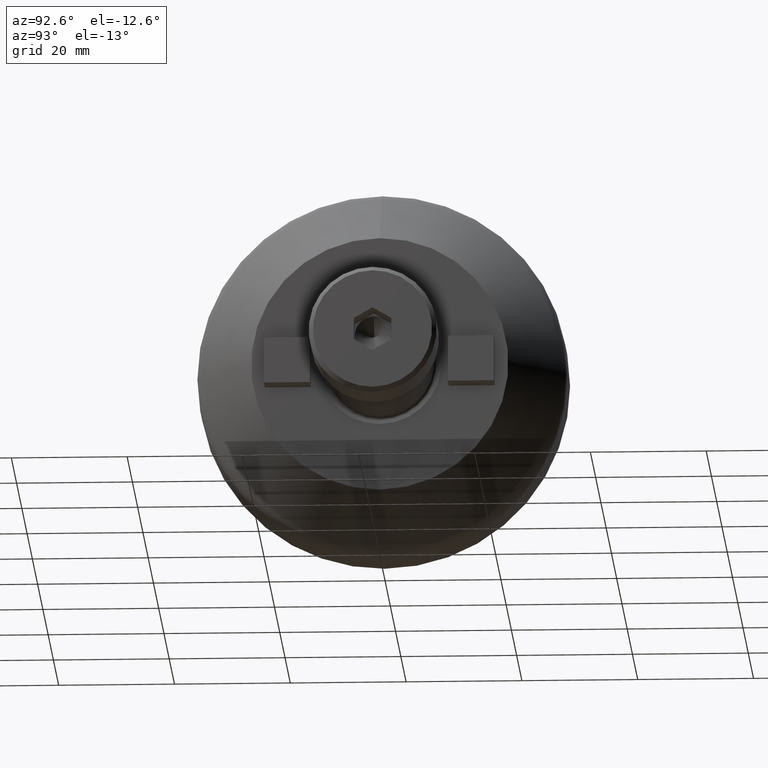
[diagram: clean part render]
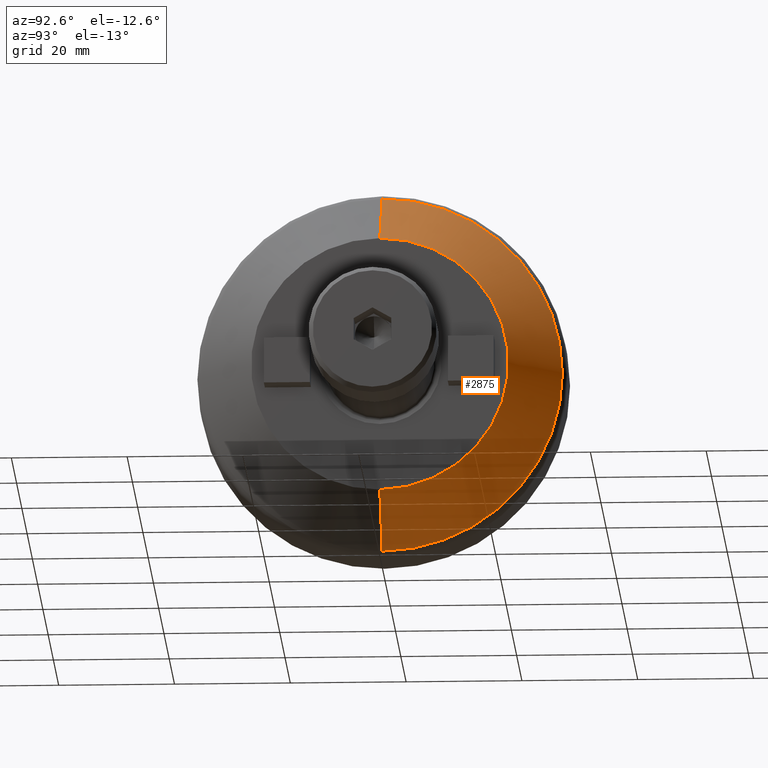
[diagram: same view with one face highlighted and labeled with its STEP entity id]
A machine part, auxiliary view. The second image highlights one B-rep face of the part: STEP entity #2875.
In plain terms, the highlighted conical surface has half-angle 45 deg.
Its self-contained STEP definition (entity closure, byte-faithful):
#199 = VECTOR ( 'NONE', #1192, 1000.000000000000000 ) ;
#269 = CARTESIAN_POINT ( 'NONE',  ( 51.01367965644033100, 0.0000000000000000000, 0.0000000000000000000 ) ) ;
#528 = CARTESIAN_POINT ( 'NONE',  ( 59.91000000000000400, 3.266520022751482600E-015, -22.22500000000000100 ) ) ;
#617 = CARTESIAN_POINT ( 'NONE',  ( 59.91000000000000400, 0.0000000000000000000, 22.22500000000000100 ) ) ;
#676 = AXIS2_PLACEMENT_3D ( 'NONE', #269, #1514, #7450 ) ;
#1069 = VERTEX_POINT ( 'NONE', #5431 ) ;
#1192 = DIRECTION ( 'NONE',  ( -0.7071067811865489100, 0.0000000000000000000, 0.7071067811865462400 ) ) ;
#1514 = DIRECTION ( 'NONE',  ( -1.000000000000000000, -0.0000000000000000000, -0.0000000000000000000 ) ) ;
#1640 = EDGE_LOOP ( 'NONE', ( #4786, #4519, #2423, #2391 ) ) ;
#1661 = LINE ( 'NONE', #7203, #4954 ) ;
#1799 = EDGE_CURVE ( 'NONE', #3390, #1948, #6989, .T. ) ;
#1948 = VERTEX_POINT ( 'NONE', #5684 ) ;
#2016 = CARTESIAN_POINT ( 'NONE',  ( 59.91000000000000400, 0.0000000000000000000, 0.0000000000000000000 ) ) ;
#2045 = DIRECTION ( 'NONE',  ( 0.0000000000000000000, 0.0000000000000000000, 1.000000000000000000 ) ) ;
#2391 = ORIENTED_EDGE ( 'NONE', *, *, #1799, .F. ) ;
#2423 = ORIENTED_EDGE ( 'NONE', *, *, #4043, .F. ) ;
#2624 = CARTESIAN_POINT ( 'NONE',  ( 59.91000000000000400, 0.0000000000000000000, 22.22500000000000100 ) ) ;
#2714 = CIRCLE ( 'NONE', #676, 31.12132034355963800 ) ;
#2875 = ADVANCED_FACE ( 'NONE', ( #6509 ), #2973, .T. ) ;
#2973 = CONICAL_SURFACE ( 'NONE', #3349, 22.22500000000000100, 0.7853981633974463900 ) ;
#3349 = AXIS2_PLACEMENT_3D ( 'NONE', #5053, #4991, #3966 ) ;
#3390 = VERTEX_POINT ( 'NONE', #2624 ) ;
#3557 = AXIS2_PLACEMENT_3D ( 'NONE', #2016, #4406, #2045 ) ;
#3624 = DIRECTION ( 'NONE',  ( -0.7071067811865489100, 8.659560562354915600E-017, -0.7071067811865462400 ) ) ;
#3966 = DIRECTION ( 'NONE',  ( 0.0000000000000000000, 0.0000000000000000000, 1.000000000000000000 ) ) ;
#4043 = EDGE_CURVE ( 'NONE', #1948, #1069, #2714, .T. ) ;
#4406 = DIRECTION ( 'NONE',  ( -1.000000000000000000, -0.0000000000000000000, -0.0000000000000000000 ) ) ;
#4519 = ORIENTED_EDGE ( 'NONE', *, *, #4534, .T. ) ;
#4534 = EDGE_CURVE ( 'NONE', #6978, #1069, #1661, .T. ) ;
#4786 = ORIENTED_EDGE ( 'NONE', *, *, #5342, .T. ) ;
#4954 = VECTOR ( 'NONE', #3624, 1000.000000000000000 ) ;
#4991 = DIRECTION ( 'NONE',  ( -1.000000000000000000, -0.0000000000000000000, -0.0000000000000000000 ) ) ;
#5053 = CARTESIAN_POINT ( 'NONE',  ( 59.91000000000000400, 0.0000000000000000000, 0.0000000000000000000 ) ) ;
#5342 = EDGE_CURVE ( 'NONE', #3390, #6978, #6836, .T. ) ;
#5431 = CARTESIAN_POINT ( 'NONE',  ( 51.01367965644033100, 3.811262534397972000E-015, -31.12132034355963800 ) ) ;
#5684 = CARTESIAN_POINT ( 'NONE',  ( 51.01367965644033100, 0.0000000000000000000, 31.12132034355963800 ) ) ;
#6509 = FACE_OUTER_BOUND ( 'NONE', #1640, .T. ) ;
#6836 = CIRCLE ( 'NONE', #3557, 22.22500000000000100 ) ;
#6978 = VERTEX_POINT ( 'NONE', #528 ) ;
#6989 = LINE ( 'NONE', #617, #199 ) ;
#7203 = CARTESIAN_POINT ( 'NONE',  ( 59.91000000000000400, 2.721777511104992800E-015, -22.22500000000000100 ) ) ;
#7450 = DIRECTION ( 'NONE',  ( 0.0000000000000000000, 0.0000000000000000000, 1.000000000000000000 ) ) ;